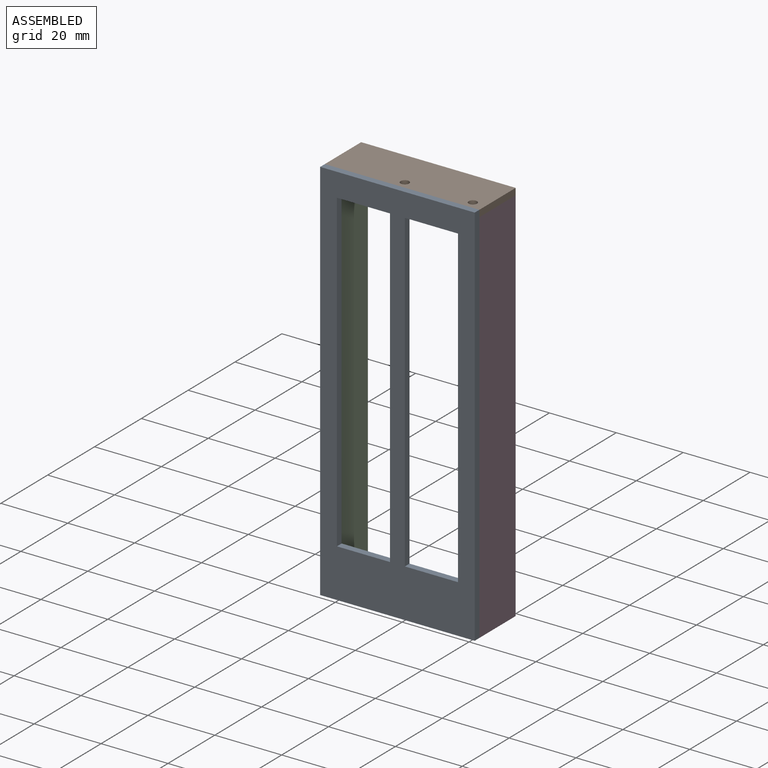
[diagram: assembled view]
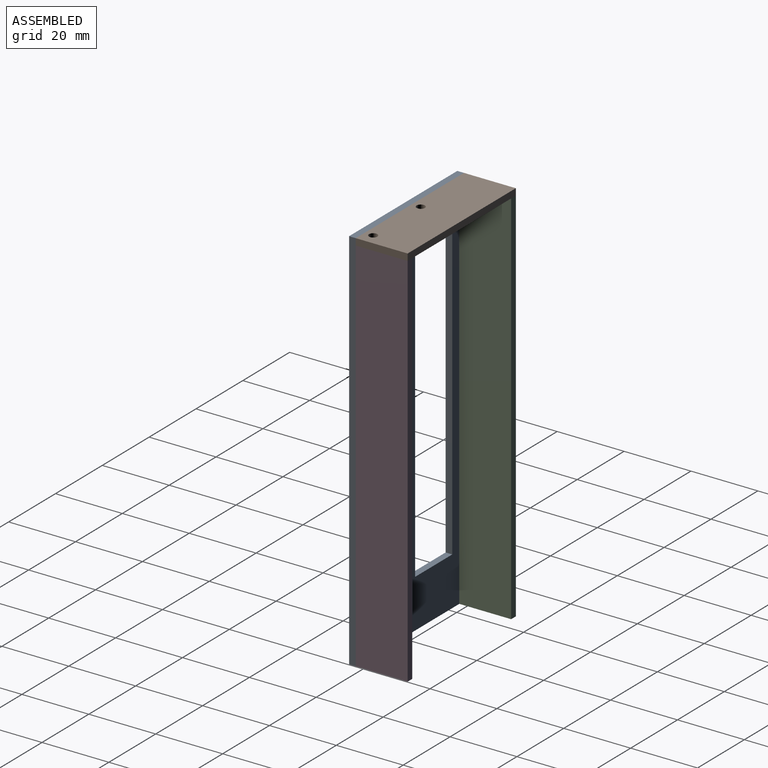
[diagram: assembled view, second angle]
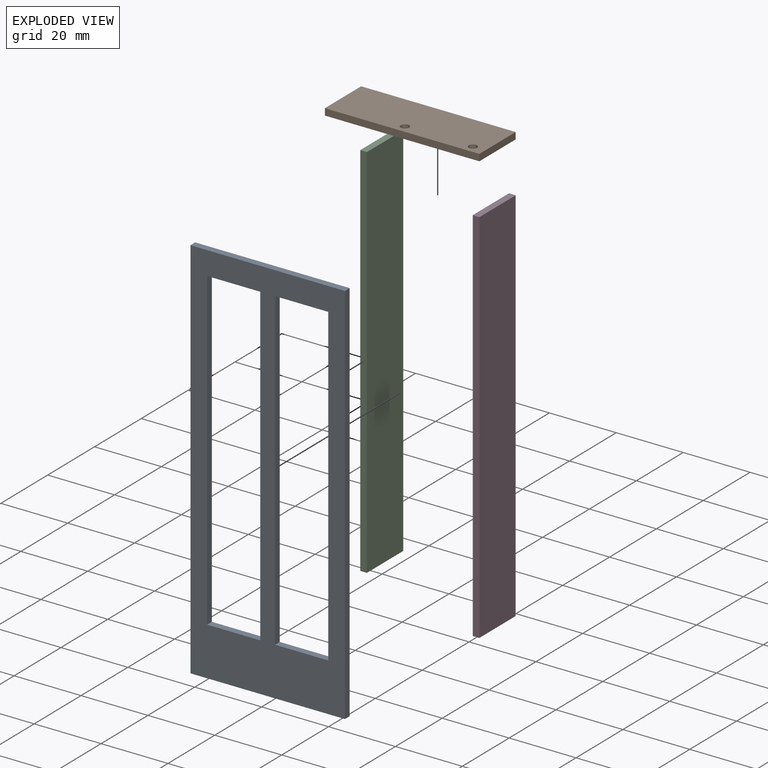
[diagram: exploded view]
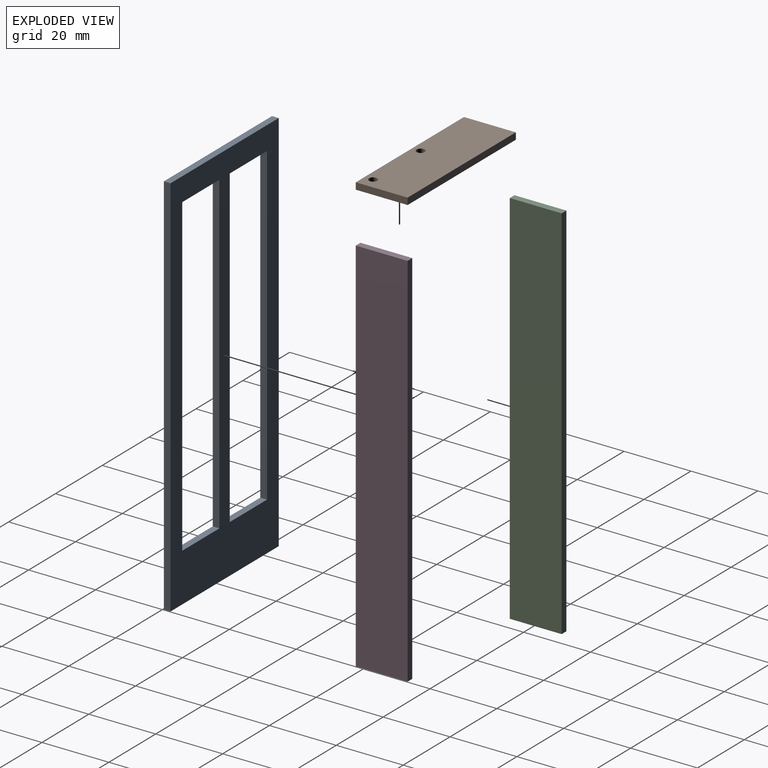
[diagram: exploded view, second angle]
ASSEMBLY  parts=4 mates=4
PART A: 14 faces, bbox 46.2x2x115.7 mm
  f0: plane 94.21x2mm, normal (1,0,0), area 188.4mm2, adj f1,f11,f12,f13
  f1: plane 15.88x2mm, normal (0,0,-1), area 31.8mm2, adj f0,f2,f12,f13
  f2: plane 94.21x2mm, normal (-1,0,0), area 188.4mm2, adj f1,f11,f12,f13
  f3: plane 15.88x2mm, normal (0,0,-1), area 31.8mm2, adj f4,f9,f12,f13
  f4: plane 94.21x2mm, normal (-1,0,0), area 188.4mm2, adj f3,f5,f12,f13
  f5: plane 15.88x2mm, normal (0,0,1), area 31.8mm2, adj f4,f9,f12,f13
  f6: plane 46.2x2mm, normal (0,0,-1), area 92.4mm2, adj f7,f10,f12,f13
  f7: plane 115.71x2mm, normal (1,0,0), area 231.4mm2, adj f6,f8,f12,f13
  f8: plane 46.2x2mm, normal (0,0,1), area 92.4mm2, adj f7,f10,f12,f13
  f9: plane 94.21x2mm, normal (1,0,0), area 188.4mm2, adj f3,f5,f12,f13
  f10: plane 115.71x2mm, normal (-1,0,0), area 231.4mm2, adj f6,f8,f12,f13
  f11: plane 15.88x2mm, normal (0,0,1), area 31.8mm2, adj f0,f2,f12,f13
  f12: plane 115.71x46.2mm, normal (0,-1,0), area 2353.7mm2, adj f0,f1,f2,f3,f4,f5,f6,f7
  f13: plane 115.71x46.2mm, normal (0,1,0), area 2353.7mm2, adj f0,f1,f2,f3,f4,f5,f6,f7
PART B: 8 faces, bbox 46.2x15.5x2 mm
  f0: plane 46.2x2mm, normal (0,1,0), area 92.4mm2, adj f1,f3,f4,f5
  f1: plane 15.5x2mm, normal (-1,0,0), area 31mm2, adj f0,f2,f4,f5
  f2: plane 46.2x2mm, normal (0,-1,0), area 92.4mm2, adj f1,f3,f4,f5
  f3: plane 15.5x2mm, normal (1,0,0), area 31mm2, adj f0,f2,f4,f5
  f4: plane 46.2x15.5mm, normal (0,0,1), area 706.3mm2, adj f0,f1,f2,f3,f6,f7
  f5: plane 46.2x15.5mm, normal (0,0,-1), area 706.3mm2, adj f0,f1,f2,f3,f6,f7
  f6: cylinder r=1.25mm len=2.5mm, axis (0,0,1), area 15.7mm2, adj f4,f5
  f7: cylinder r=1.25mm len=2.5mm, axis (0,0,1), area 15.7mm2, adj f4,f5
PART C: 6 faces, bbox 2x15.5x113.7 mm
  f0: plane 15.5x2mm, normal (0,0,-1), area 31mm2, adj f1,f3,f4,f5
  f1: plane 113.71x15.5mm, normal (1,0,0), area 1762.5mm2, adj f0,f2,f4,f5
  f2: plane 15.5x2mm, normal (0,0,1), area 31mm2, adj f1,f3,f4,f5
  f3: plane 113.71x15.5mm, normal (-1,0,0), area 1762.5mm2, adj f0,f2,f4,f5
  f4: plane 113.71x2mm, normal (0,1,0), area 227.4mm2, adj f0,f1,f2,f3
  f5: plane 113.71x2mm, normal (0,-1,0), area 227.4mm2, adj f0,f1,f2,f3
PART D: 6 faces, bbox 2x15.5x113.7 mm
  f0: plane 15.5x2mm, normal (0,0,1), area 31mm2, adj f1,f3,f4,f5
  f1: plane 113.71x15.5mm, normal (-1,0,0), area 1762.5mm2, adj f0,f2,f4,f5
  f2: plane 15.5x2mm, normal (0,0,-1), area 31mm2, adj f1,f3,f4,f5
  f3: plane 113.71x15.5mm, normal (1,0,0), area 1762.5mm2, adj f0,f2,f4,f5
  f4: plane 113.71x2mm, normal (0,1,0), area 227.4mm2, adj f0,f1,f2,f3
  f5: plane 113.71x2mm, normal (0,-1,0), area 227.4mm2, adj f0,f1,f2,f3
PLACE A at identity
PLACE B at identity
PLACE C at identity
PLACE D at identity
MATE fastened D.f5 <-> A.f13  axis (0,-1,0) through (23.1,0,-56.86)mm
MATE fastened B.f2 <-> A.f13  axis (0,-1,0) through (23.1,0,58.85)mm
MATE fastened C.f2 <-> B.f5  axis (0,0,1) through (-23.1,15.5,56.85)mm
MATE fastened C.f5 <-> A.f13  axis (0,-1,0) through (-23.1,0,-56.86)mm
